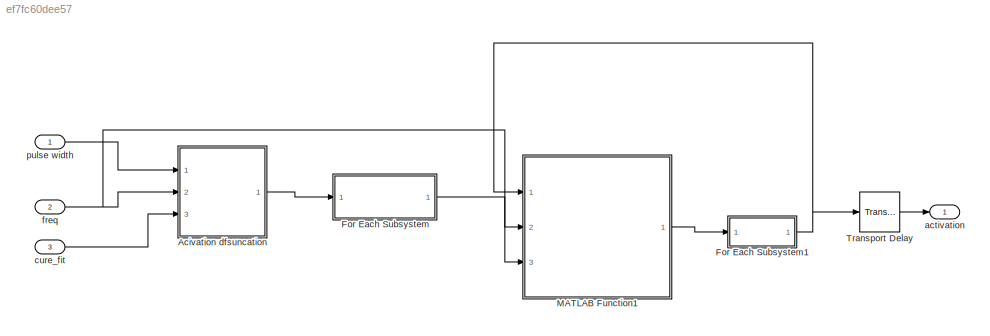
MODEL slx_ef7fc60dee57
KIND model
CONFIG AbsTol = auto
CONFIG EnableMultiTasking = off
CONFIG FixedStep = auto
CONFIG MaxStep = auto
CONFIG MinStep = auto
CONFIG RelTol = 1e-3
CONFIG SampleTimeConstraint = Unconstrained
CONFIG Solver = VariableStepAuto
CONFIG SolverName = VariableStepAuto
CONFIG StartTime = 0.0
CONFIG StopTime = 10.0
BLOCK [Inport]  pulse width 
  IconDisplay = Port number
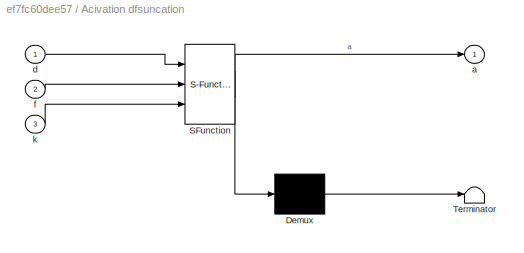
BLOCK [SubSystem] Acivation dfsuncation
  ErrorFcn = Stateflow.Translate.translate
  PermitHierarchicalResolution = ExplicitOnly
  Ports = [3, 1]
  RequestExecContextInheritance = off
  SFBlockType = MATLAB Function
  TreatAsAtomicUnit = on
  Variant = off
BLOCK [Demux] Acivation dfsuncation/ Demux 
  Outputs = 1
  Ports = [1, 1]
BLOCK [S-Function] Acivation dfsuncation/ SFunction 
  EnableBusSupport = off
  FunctionName = sf_sfun
  PortCounts = [3 2]
  Ports = [3, 2]
  SFcnIsStateOwnerBlock = off
  SFunctionDeploymentMode = off
  Tag = Stateflow S-Function mucsleAcivation 2
BLOCK [Terminator] Acivation dfsuncation/ Terminator 
BLOCK [Outport] Acivation dfsuncation/a
  IconDisplay = Port number
BLOCK [Inport] Acivation dfsuncation/d
  IconDisplay = Port number
BLOCK [Inport] Acivation dfsuncation/f
  IconDisplay = Port number
  Port = 2
BLOCK [Inport] Acivation dfsuncation/k
  IconDisplay = Port number
  Port = 3
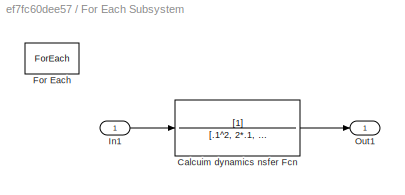
BLOCK [SubSystem] For Each Subsystem
  Ports = [1, 1]
  RequestExecContextInheritance = off
  TreatAsAtomicUnit = on
  Variant = off
BLOCK [TransferFcn] For Each Subsystem/Calcuim dynamics nsfer Fcn
  Denominator = [.1^2, 2*.1, 1]
BLOCK [ForEach] For Each Subsystem/For Each
  DisableCoverage = on
  IndexMode = One-based
  Ports = []
BLOCK [Inport] For Each Subsystem/In1
  IconDisplay = Port number
  Partition = on
  PartitionDimension = 1
  PartitionWidth = 1
BLOCK [Outport] For Each Subsystem/Out1
  ConcatenationDimension = 1
  IconDisplay = Port number
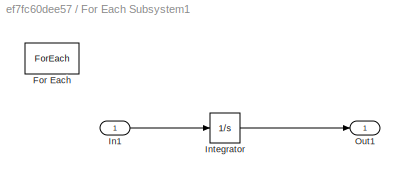
BLOCK [SubSystem] For Each Subsystem1
  Ports = [1, 1]
  RequestExecContextInheritance = off
  TreatAsAtomicUnit = on
  Variant = off
BLOCK [ForEach] For Each Subsystem1/For Each
  DisableCoverage = on
  IndexMode = One-based
  Ports = []
BLOCK [Inport] For Each Subsystem1/In1
  IconDisplay = Port number
  Partition = on
  PartitionDimension = 1
  PartitionWidth = 1
BLOCK [Integrator] For Each Subsystem1/Integrator
  Ports = [1, 1]
BLOCK [Outport] For Each Subsystem1/Out1
  ConcatenationDimension = 1
  IconDisplay = Port number
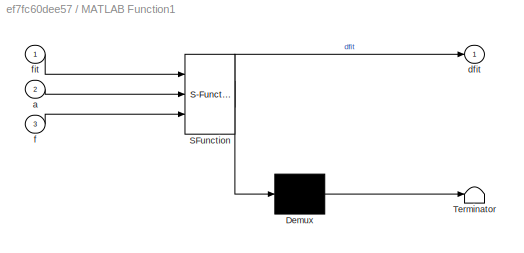
BLOCK [SubSystem] MATLAB Function1
  ErrorFcn = Stateflow.Translate.translate
  PermitHierarchicalResolution = ExplicitOnly
  Ports = [3, 1]
  RequestExecContextInheritance = off
  SFBlockType = MATLAB Function
  TreatAsAtomicUnit = on
  Variant = off
BLOCK [Demux] MATLAB Function1/ Demux 
  Outputs = 1
  Ports = [1, 1]
BLOCK [S-Function] MATLAB Function1/ SFunction 
  EnableBusSupport = off
  FunctionName = sf_sfun
  PortCounts = [3 2]
  Ports = [3, 2]
  SFcnIsStateOwnerBlock = off
  SFunctionDeploymentMode = off
  Tag = Stateflow S-Function mucsleAcivation 1
BLOCK [Terminator] MATLAB Function1/ Terminator 
BLOCK [Inport] MATLAB Function1/a
  IconDisplay = Port number
  Port = 2
BLOCK [Outport] MATLAB Function1/dfit
  IconDisplay = Port number
BLOCK [Inport] MATLAB Function1/f
  IconDisplay = Port number
  Port = 3
BLOCK [Inport] MATLAB Function1/fit
  IconDisplay = Port number
BLOCK [TransportDelay] Transport Delay
  DelayTime = T_del
  Ports = [1, 1]
BLOCK [Outport] activation 
  IconDisplay = Port number
BLOCK [Inport] cure_fit 
  IconDisplay = Port number
  Port = 3
BLOCK [Inport] freq 
  IconDisplay = Port number
  Port = 2
LINE  pulse width :1 -> Acivation dfsuncation:1
LINE Acivation dfsuncation:1 -> For Each Subsystem:1
LINE For Each Subsystem/Calcuim dynamics nsfer Fcn:1 -> For Each Subsystem/Out1:1
LINE For Each Subsystem/In1:1 -> For Each Subsystem/Calcuim dynamics nsfer Fcn:1
LINE For Each Subsystem1/In1:1 -> For Each Subsystem1/Integrator:1
LINE For Each Subsystem1/Integrator:1 -> For Each Subsystem1/Out1:1
NET For Each Subsystem1:1 -> MATLAB Function1:1, Transport Delay:1
LINE For Each Subsystem:1 -> MATLAB Function1:2
LINE MATLAB Function1:1 -> For Each Subsystem1:1
LINE Transport Delay:1 -> activation :1
LINE cure_fit :1 -> Acivation dfsuncation:3
NET freq :1 -> Acivation dfsuncation:2, MATLAB Function1:3
note: NET lines group one-source signal fan-out (src -> all destinations, sorted); 1:1 wires keep LINE
CHART MATLAB Function1 states=1 transitions=1
  STATE_LABEL 'eML_blk_kernel()'
  STATE_LABEL 'SCRIPT:\nfunction dfit = fcn( fit,a,f)\n\ndfit = fatigue( fit,a,f );\n'
CHART Acivation
dfsuncation states=1 transitions=1
  STATE_LABEL 'eML_blk_kernel()'
  STATE_LABEL 'SCRIPT:\nfunction a = fcn(d,f,k)\n\na = activation(d,f,k);\n'
